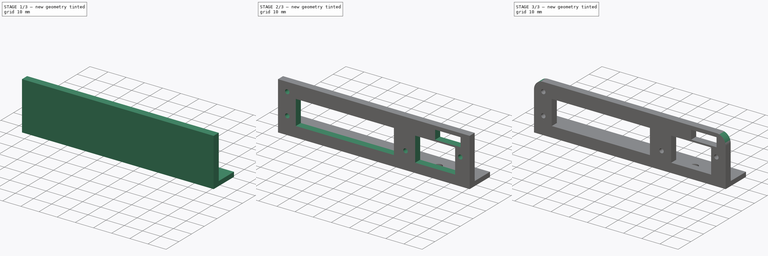
[diagram: build sequence overview — one tinted view per stage of 3, left to right]
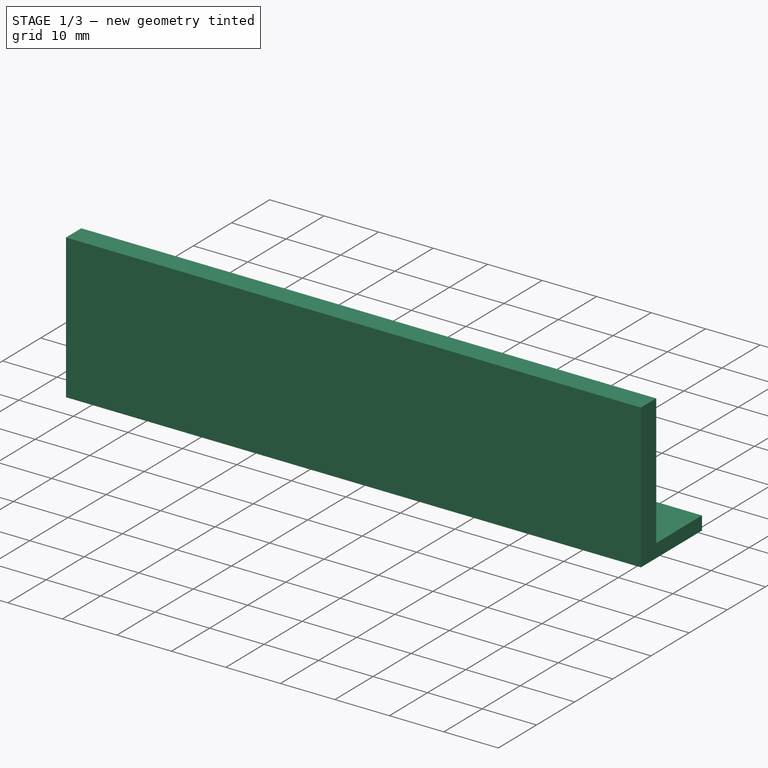
[diagram: stage 1 of 3 — iso view after this stage's code; geometry added in this stage tinted green]
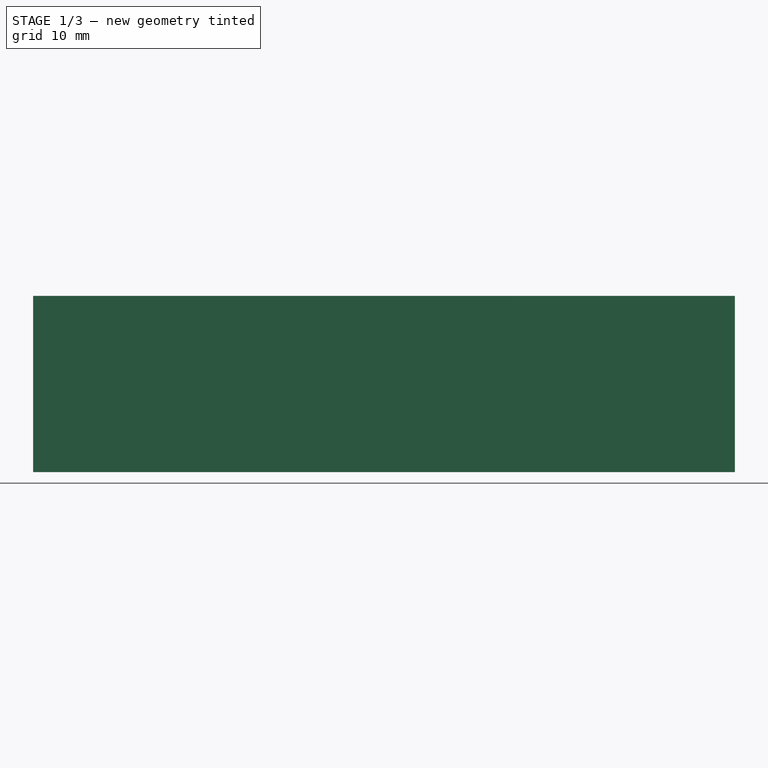
[diagram: stage 1 of 3 — front view after this stage's code; geometry added in this stage tinted green]
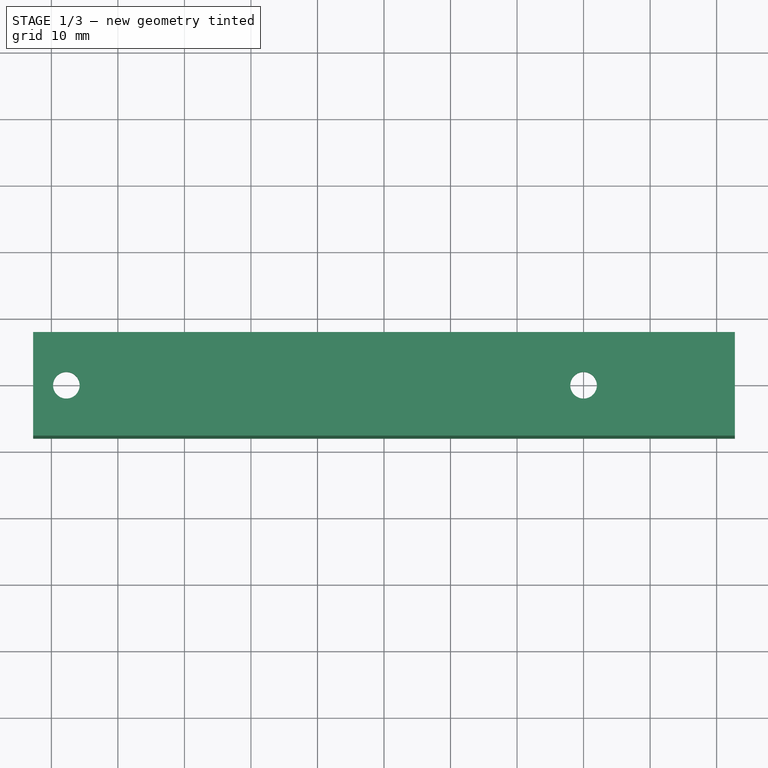
[diagram: stage 1 of 3 — top view after this stage's code; geometry added in this stage tinted green]
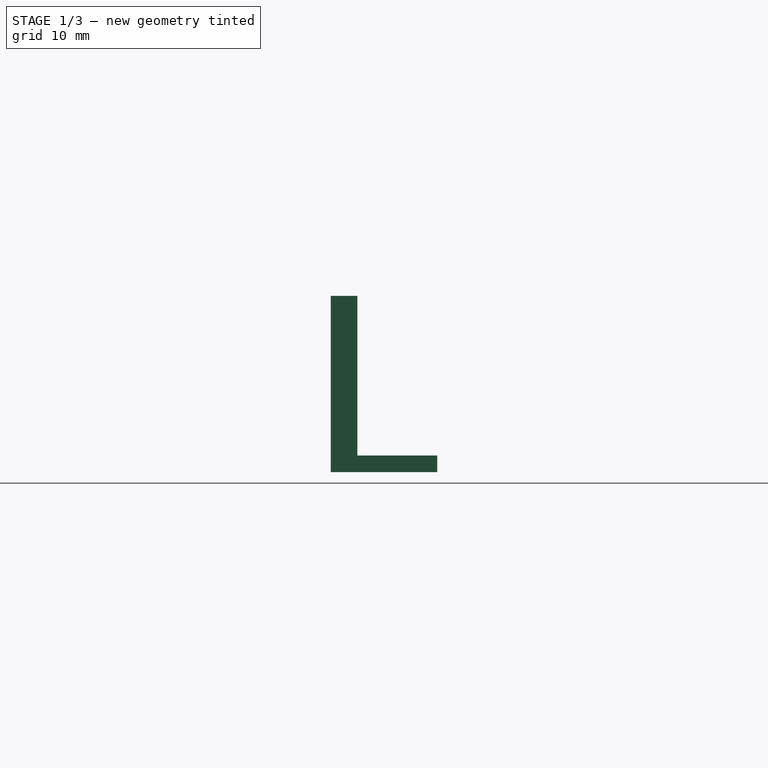
[diagram: stage 1 of 3 — right view after this stage's code; geometry added in this stage tinted green]
FCSTD DOCUMENT  (FreeCAD 0.18.4R)
Label: up_left_magnet_pcb_spport_2
License: All rights reserved
LicenseURL: http://en.wikipedia.org/wiki/All_rights_reserved
objects: Part::Feature×7, Sketcher::SketchObject×5, App::Part×5, PartDesign::Pad×2, PartDesign::Pocket×2, PartDesign::Fillet×2, PartDesign::Body×1, PartDesign::CoordinateSystem×1
note: 24 computed .brp shape members not serialized (recipe doc carries the construction recipe); baked Part::Feature solids carry a one-line shape summary decoded from their .brp

FEATURE [Sketcher::SketchObject] Sketch
  MapMode = 5
  Support = -> [XY_Plane]
  sketch-geometry (10):
    g0: LineSegment StartX=-52.75 StartY=8 StartZ=0 EndX=52.75 EndY=8 EndZ=0
    g1: LineSegment StartX=52.75 StartY=-8 StartZ=0 EndX=-52.75 EndY=-8 EndZ=0
    g2: LineSegment StartX=-52.75 StartY=8 StartZ=0 EndX=-52.75 EndY=4 EndZ=0
    g3: LineSegment StartX=-52.75 StartY=-4 StartZ=0 EndX=-52.75 EndY=-8 EndZ=0
    g4: LineSegment StartX=52.75 StartY=8 StartZ=0 EndX=52.75 EndY=3.73191 EndZ=0
    g5: LineSegment StartX=52.75 StartY=-4.26809 StartZ=0 EndX=52.75 EndY=-8 EndZ=0
    g6: LineSegment StartX=-52.75 StartY=4 StartZ=0 EndX=-52.75 EndY=-4 EndZ=0
    g7: LineSegment StartX=52.75 StartY=-4.26809 StartZ=0 EndX=52.75 EndY=3.73191 EndZ=0
    g8: Circle CenterX=-47.75 CenterY=0 CenterZ=0 NormalX=0 NormalY=0 NormalZ=1 AngleXU=0 Radius=2
    g9: Circle CenterX=30 CenterY=0 CenterZ=0 NormalX=0 NormalY=0 NormalZ=1 AngleXU=0 Radius=2
  constraints (22):
    c: Horizontal(g1)
    c: Symmetric(g0,g1,g-1)
    c: Symmetric(g0,g0,g-2)
    c: DistanceY(g1,g0) = 16
    c: DistanceX(g0,g0) = 105.5
    c: Coincident(g0,g2)
    c: Vertical(g2)
    c: Coincident(g3,g1)
    c: Coincident(g0,g4)
    c: Coincident(g5,g1)
    c: Vertical(g2,g3)
    c: Vertical(g4,g5)
    c: Vertical(g4,g0)
    c: Vertical(g1,g5)
    c: Coincident(g6,g2)
    c: Coincident(g6,g3)
    c: Coincident(g7,g5)
    c: Coincident(g7,g4)
    c: PointOnObject(g8,g-1)
    c: Radius(g8) = 2
    c: Radius(g9) = 2
    c: Distance(g8,g6) = 5
FEATURE [PartDesign::Pad] Pad
  Length = 2.5
  Length2 = 100
  Profile = -> Sketch
  Type = 0
FEATURE [Sketcher::SketchObject] Sketch001
  ExternalGeometry = -> [Pad]
  MapMode = 5
  Placement = pos=(0,0,2.5) rot=(0,0,1;0rad)
  Support = -> [Pad]
  sketch-geometry (4):
    g0: LineSegment StartX=-52.75 StartY=-8 StartZ=0 EndX=52.75 EndY=-8 EndZ=0
    g1: LineSegment StartX=52.75 StartY=-8 StartZ=0 EndX=52.75 EndY=-4 EndZ=0
    g2: LineSegment StartX=52.75 StartY=-4 StartZ=0 EndX=-52.75 EndY=-4 EndZ=0
    g3: LineSegment StartX=-52.75 StartY=-4 StartZ=0 EndX=-52.75 EndY=-8 EndZ=0
  constraints (11):
    c: Coincident(g0,g1)
    c: Coincident(g1,g2)
    c: Coincident(g2,g3)
    c: Coincident(g3,g0)
    c: Horizontal(g0)
    c: Horizontal(g2)
    c: Vertical(g1)
    c: Vertical(g3)
    c: Coincident(g0,g-5)
    c: PointOnObject(g1,g-6)
    c: DistanceY(g3,g3) = 4
FEATURE [PartDesign::Pad] Pad001
  BaseFeature = -> Pad
  Length = 24
  Length2 = 100
  Profile = -> Sketch001
  Type = 0
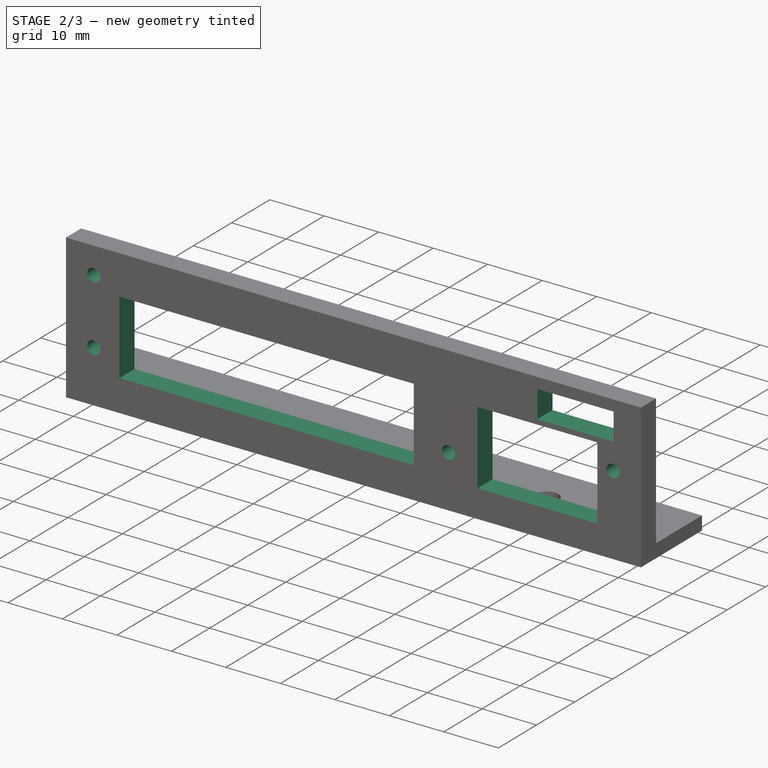
[diagram: stage 2 of 3 — iso view after this stage's code; geometry added in this stage tinted green]
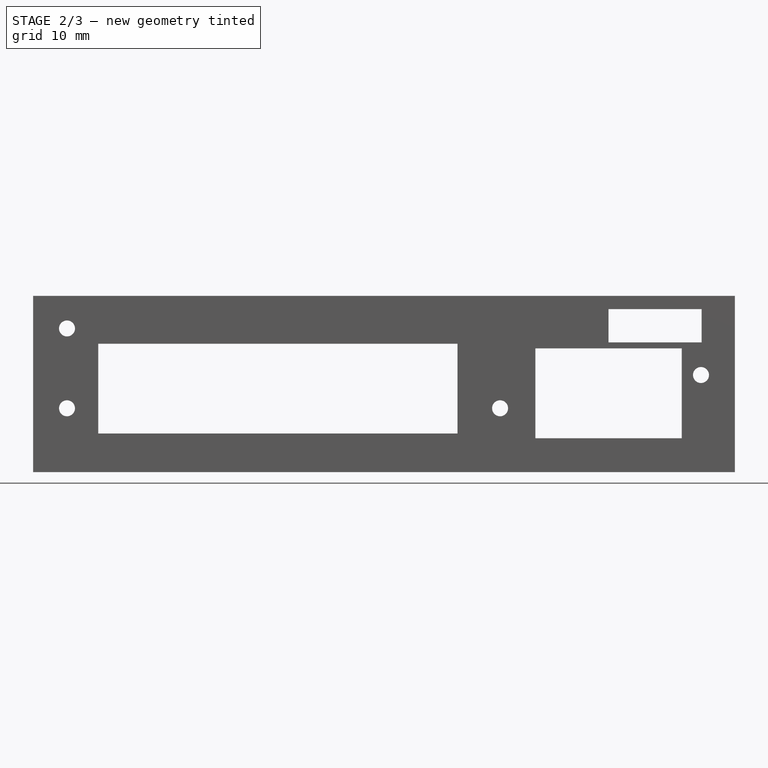
[diagram: stage 2 of 3 — front view after this stage's code; geometry added in this stage tinted green]
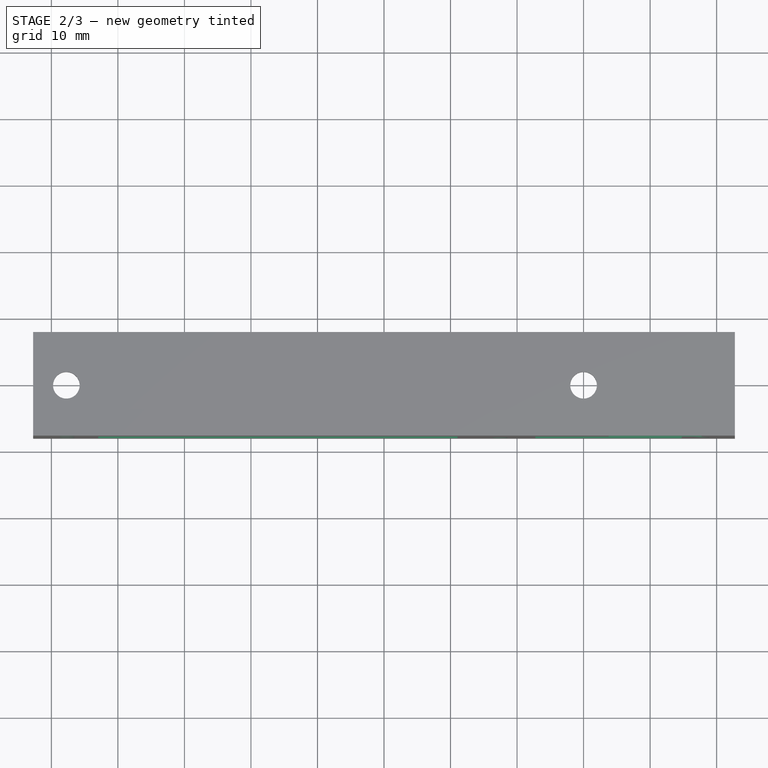
[diagram: stage 2 of 3 — top view after this stage's code; geometry added in this stage tinted green]
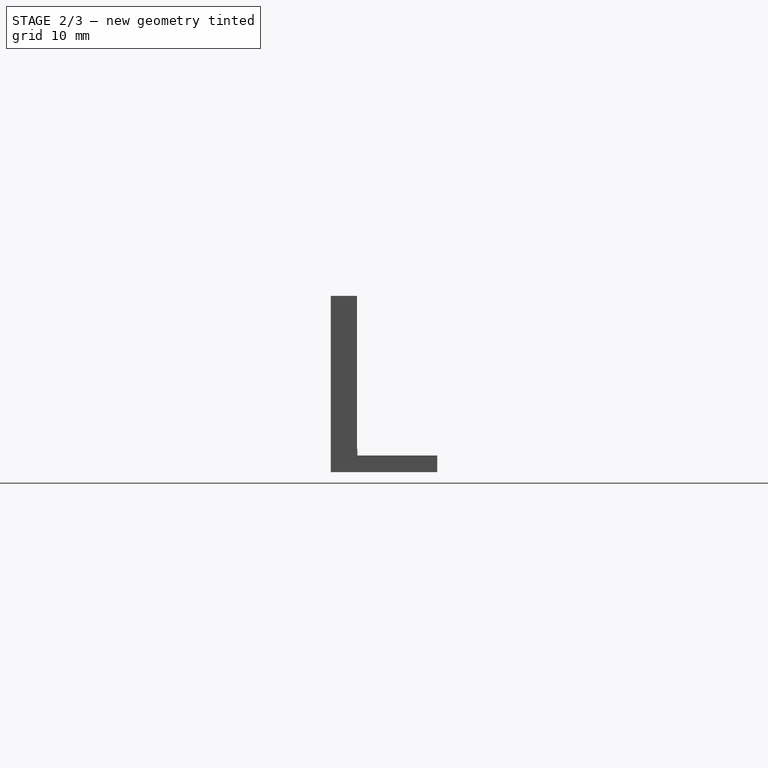
[diagram: stage 2 of 3 — right view after this stage's code; geometry added in this stage tinted green]
FEATURE [Sketcher::SketchObject] Sketch002
  ExternalGeometry = -> [Pad001]
  MapMode = 5
  Placement = pos=(0,-4,0) rot=(0,0.707107,0.707107;3.14159rad)
  Support = -> [Pad001]
  sketch-geometry (4):
    g0: LineSegment StartX=-52.75 StartY=3.5 StartZ=0 EndX=52.75 EndY=3.5 EndZ=0
    g1: LineSegment StartX=52.75 StartY=3.5 StartZ=0 EndX=52.75 EndY=26.5 EndZ=0
    g2: LineSegment StartX=52.75 StartY=26.5 StartZ=0 EndX=-52.75 EndY=26.5 EndZ=0
    g3: LineSegment StartX=-52.75 StartY=26.5 StartZ=0 EndX=-52.75 EndY=3.5 EndZ=0
  constraints (11):
    c: Coincident(g0,g1)
    c: Coincident(g1,g2)
    c: Coincident(g2,g3)
    c: Coincident(g3,g0)
    c: Horizontal(g0)
    c: Horizontal(g2)
    c: Vertical(g1)
    c: Vertical(g3)
    c: PointOnObject(g0,g-3)
    c: Coincident(g1,g-4)
    c: DistanceY(g3,g3) = 23
FEATURE [PartDesign::Pocket] Pocket
  BaseFeature = -> Pad001
  Length = 0.05
  Length2 = 100
  Profile = -> Sketch002
  Type = 0
FEATURE [Sketcher::SketchObject] Sketch003
  ExternalGeometry = -> [Pocket]
  MapMode = 5
  Placement = pos=(0,-4.05,9e-16) rot=(0,0.707107,0.707107;3.14159rad)
  Support = -> [Pocket]
  sketch-geometry (16):
    g0: Circle CenterX=47.65 CenterY=9.6 CenterZ=0 NormalX=0 NormalY=0 NormalZ=1 AngleXU=0 Radius=1.2
    g1: Circle CenterX=47.65 CenterY=21.6 CenterZ=0 NormalX=0 NormalY=0 NormalZ=1 AngleXU=0 Radius=1.2
    g2: Circle CenterX=-17.45 CenterY=9.6 CenterZ=0 NormalX=0 NormalY=0 NormalZ=1 AngleXU=0 Radius=1.2
    g3: Circle CenterX=-47.65 CenterY=14.6 CenterZ=0 NormalX=0 NormalY=0 NormalZ=1 AngleXU=0 Radius=1.2
    g4: LineSegment StartX=42.95 StartY=5.8 StartZ=0 EndX=-11.05 EndY=5.8 EndZ=0
    g5: LineSegment StartX=-11.05 StartY=5.8 StartZ=0 EndX=-11.05 EndY=19.3 EndZ=0
    g6: LineSegment StartX=-11.05 StartY=19.3 StartZ=0 EndX=42.95 EndY=19.3 EndZ=0
    g7: LineSegment StartX=42.95 StartY=19.3 StartZ=0 EndX=42.95 EndY=5.8 EndZ=0
    g8: LineSegment StartX=-22.75 StartY=5.1 StartZ=0 EndX=-44.75 EndY=5.1 EndZ=0
    g9: LineSegment StartX=-44.75 StartY=5.1 StartZ=0 EndX=-44.75 EndY=18.6 EndZ=0
    g10: LineSegment StartX=-44.75 StartY=18.6 StartZ=0 EndX=-22.75 EndY=18.6 EndZ=0
    g11: LineSegment StartX=-22.75 StartY=18.6 StartZ=0 EndX=-22.75 EndY=5.1 EndZ=0
    g12: LineSegment StartX=-33.75 StartY=19.5 StartZ=0 EndX=-47.75 EndY=19.5 EndZ=0
    g13: LineSegment StartX=-47.75 StartY=19.5 StartZ=0 EndX=-47.75 EndY=24.5 EndZ=0
    g14: LineSegment StartX=-47.75 StartY=24.5 StartZ=0 EndX=-33.75 EndY=24.5 EndZ=0
    g15: LineSegment StartX=-33.75 StartY=24.5 StartZ=0 EndX=-33.75 EndY=19.5 EndZ=0
  constraints (48):
    c: Coincident(g4,g5)
    c: Coincident(g5,g6)
    c: Coincident(g6,g7)
    c: Coincident(g7,g4)
    c: Horizontal(g4)
    c: Horizontal(g6)
    c: Vertical(g5)
    c: Vertical(g7)
    c: Coincident(g8,g9)
    c: Coincident(g9,g10)
    c: Coincident(g10,g11)
    c: Coincident(g11,g8)
    c: Horizontal(g8)
    c: Horizontal(g10)
    c: Vertical(g9)
    c: Vertical(g11)
    c: Vertical(g0,g1)
    c: Distance(g0,g1) = 12
    c: Distance(g0,g-3) = 5.1
    c: Distance(g0,g-4) = 6.1
    c: Radius(g0) = 1.2
    c: Radius(g1) = 1.2
    c: Radius(g3) = 1.2
    c: Radius(g2) = 1.2
    c: DistanceX(g4,g4) = 54
    c: DistanceY(g5,g5) = 13.5
    c: Distance(g4,g-4) = 2.3
    c: Distance(g4,g-3) = 9.8
    c: Horizontal(g2,g0)
    c: Distance(g2,g0) = 65.1
    c: DistanceX(g8,g8) = 22
    c: DistanceY(g9,g9) = 13.5
    c: Distance(g9,g-5) = 8
    c: Distance(g3,g-4) = 11.1
    c: Distance(g3,g-5) = 5.1
    c: Distance(g8,g-4) = 1.6
    c: Coincident(g12,g13)
    c: Coincident(g13,g14)
    c: Coincident(g14,g15)
    c: Coincident(g15,g12)
    c: Horizontal(g12)
    c: Horizontal(g14)
    c: Vertical(g13)
    c: Vertical(g15)
    c: DistanceY(g15,g15) = 5
    c: Distance(g12,g-6) = 7
    c: Distance(g12,g-5) = 5
    c: DistanceX(g14,g14) = 14
FEATURE [PartDesign::Pocket] Pocket001
  BaseFeature = -> Pocket
  Length = 5
  Length2 = 100
  Profile = -> Sketch003
  Type = 0
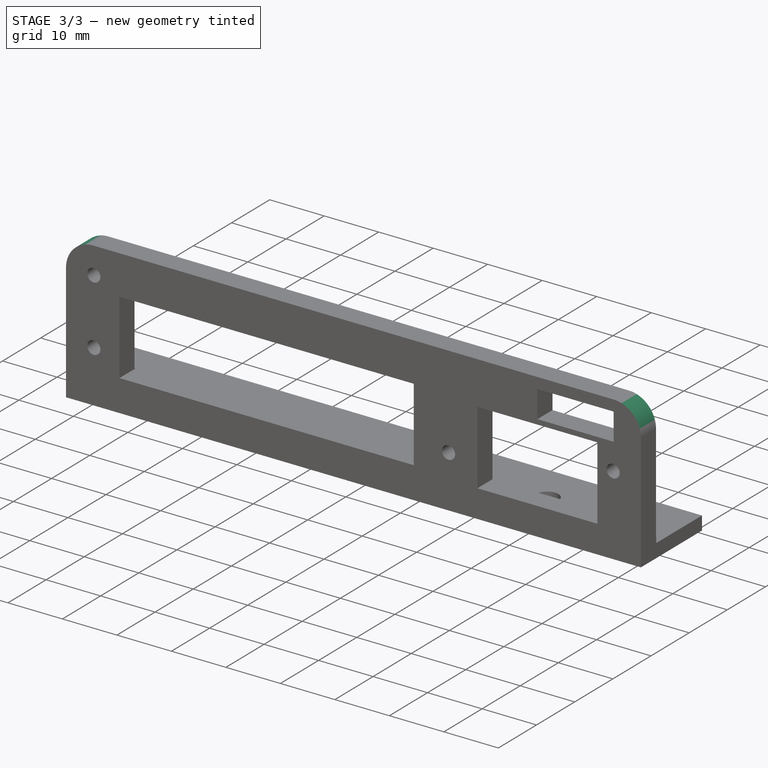
[diagram: stage 3 of 3 — iso view after this stage's code; geometry added in this stage tinted green]
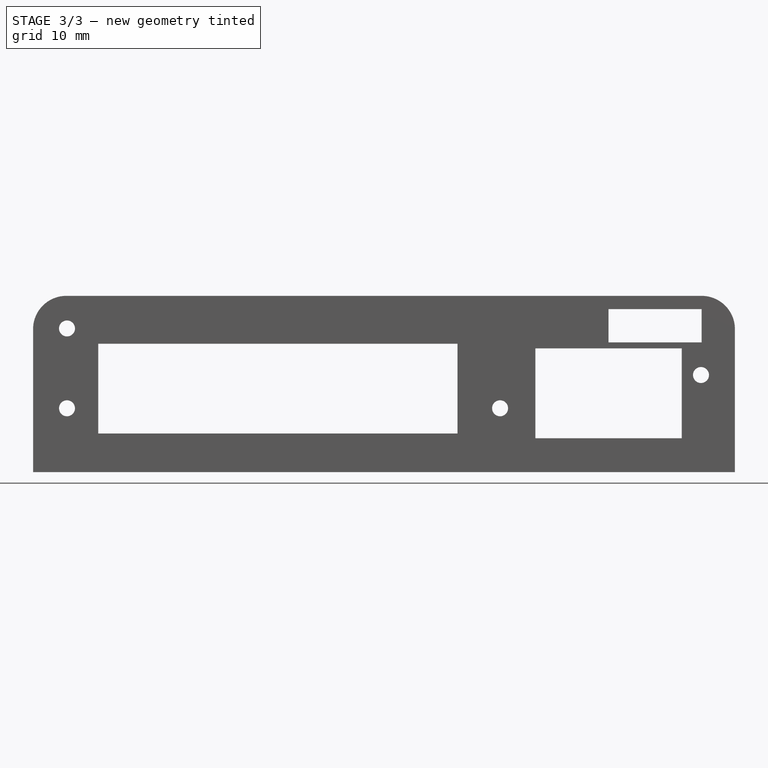
[diagram: stage 3 of 3 — front view after this stage's code; geometry added in this stage tinted green]
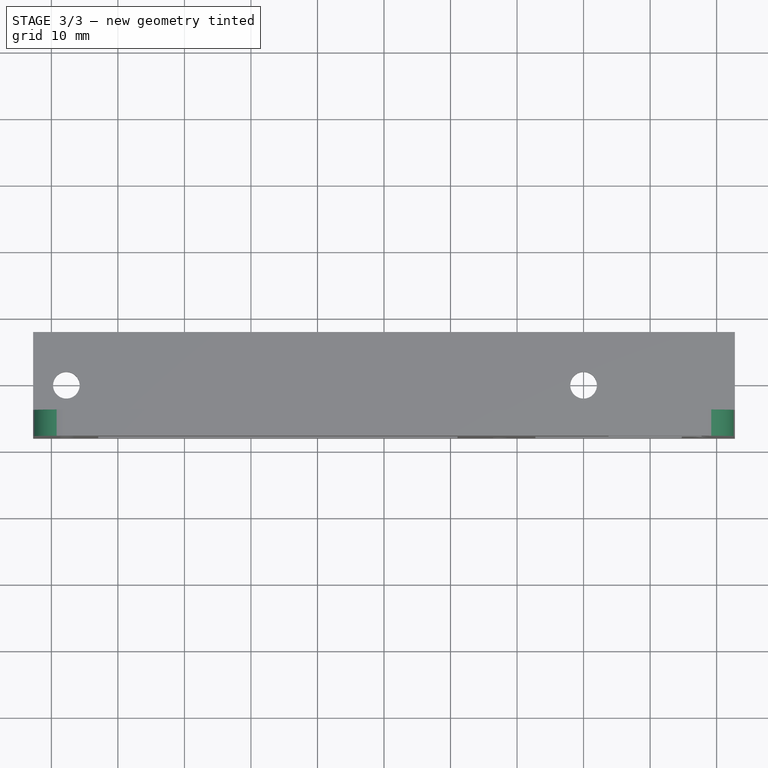
[diagram: stage 3 of 3 — top view after this stage's code; geometry added in this stage tinted green]
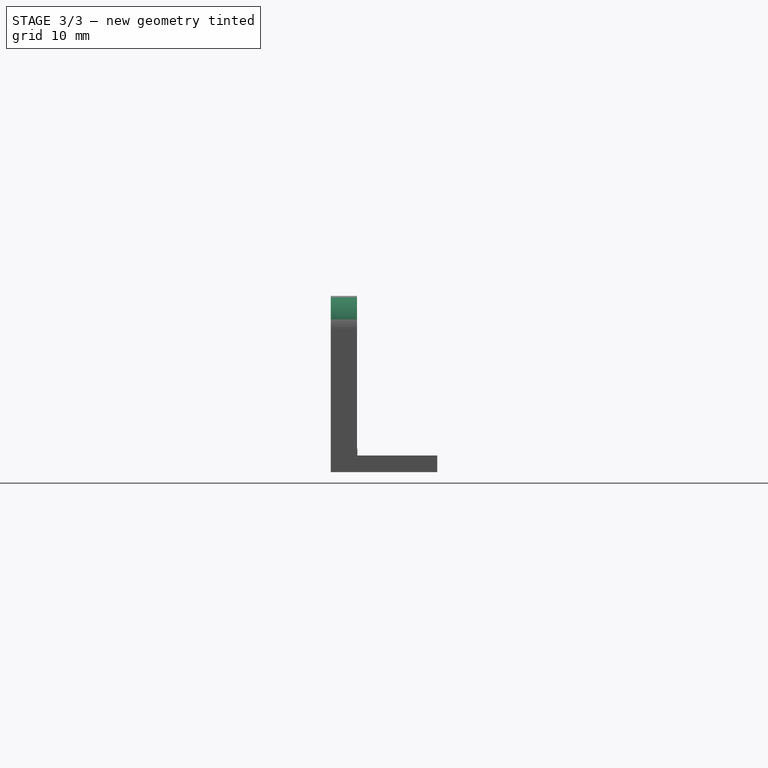
[diagram: stage 3 of 3 — right view after this stage's code; geometry added in this stage tinted green]
FEATURE [PartDesign::Fillet] Fillet
  Base = -> Pocket001 [Edge42]
  BaseFeature = -> Pocket001
  Radius = 5
FEATURE [PartDesign::Fillet] Fillet001
  Base = -> Fillet [Edge59]
  BaseFeature = -> Fillet
  Radius = 5
FEATURE [PartDesign::Body] Body
  Group = -> [Sketch,Pad,Sketch001,Pad001,Sketch002,Pocket,Sketch003,Pocket001,Fillet,Fillet001]
  Origin = -> Origin
  Tip = -> Fillet001
FEATURE [Part::Feature] Shape003  label="J3_PinHeader_2x07_P254mm_Vertical_6278083A"
  Placement = pos=(198.963,-65.2983,-1.6) rot=(0.707107,-0.707107,0;3.14159rad)
  shape: bbox 17.78 x 5.08 x 11.54 mm, 298 faces (baked)
FEATURE [Part::Feature] Shape005  label="J4_JST_B4B_EH_A_62780C6B"
  Placement = pos=(210,-79.9541,0) rot=(0,0,1;0rad)
  shape: bbox 12.5 x 3.8 x 9.2 mm, 126 faces (baked)
FEATURE [Part::Feature] Shape004  label="R3_R_0805_2012Metric_6278086D"
  Placement = pos=(174.541,-80.4266,0) rot=(0,0,1;0rad)
  shape: bbox 2 x 1.2 x 0.45 mm, 26 faces (baked)
FEATURE [Part::Feature] Shape  label="D3_LED_1206_3216Metric_627807AB"
  Placement = pos=(181.336,-80.3402,0) rot=(0,0,1;0rad)
  shape: bbox 3.2 x 1.6 x 1.1 mm, 50 faces (baked)
FEATURE [Part::Feature] Pcb_64d6
  shape: bbox 105 x 23 x 1.6 mm, 67 faces (baked)
FEATURE [Part::Feature] Shape002  label="J2_PinHeader_2x07_P254mm_Vertical_62780816"
  Placement = pos=(198.892,-72.2478,-1.6) rot=(0.707107,-0.707107,0;3.14159rad)
  shape: bbox 17.78 x 5.08 x 11.54 mm, 298 faces (baked)
FEATURE [App::Part] Bot_64d6
  Group = -> [Shape002,Shape003]
  Origin = -> Origin004
FEATURE [Sketcher::SketchObject] PCB_Sketch_64d6
  sketch-geometry (6):
    g0: LineSegment StartX=120 StartY=-80.0057 StartZ=0 EndX=120 EndY=-62 EndZ=0
    g1: LineSegment StartX=124.871 StartY=-84.9935 StartZ=0 EndX=220 EndY=-84.9986 EndZ=0
    g2: LineSegment StartX=225 StartY=-62 StartZ=0 EndX=224.962 EndY=-80.1218 EndZ=0
    g3: LineSegment StartX=120 StartY=-62 StartZ=0 EndX=225 EndY=-62 EndZ=0
    g4: ArcOfCircle CenterX=220 CenterY=-80.0354 CenterZ=0 NormalX=0 NormalY=0 NormalZ=1 AngleXU=0 Radius=4.96316 StartAngle=4.71239 EndAngle=6.26579
    g5: ArcOfCircle CenterX=124.963 CenterY=-80.0311 CenterZ=0 NormalX=0 NormalY=0 NormalZ=1 AngleXU=0 Radius=4.96322 StartAngle=3.13647 EndAngle=4.69397
  constraints (6):
    c: Coincident(g0,g5)
    c: Coincident(g0,g3)
    c: Coincident(g1,g5)
    c: Coincident(g1,g4)
    c: Coincident(g2,g4)
    c: Coincident(g2,g3)
FEATURE [PartDesign::CoordinateSystem] Local_CS_64d6
  AttacherType = Attacher::AttachEngine3D
FEATURE [App::Part] Board_Geoms_64d6
  Group = -> [Local_CS_64d6,Pcb_64d6,PCB_Sketch_64d6]
  Origin = -> Origin001
FEATURE [Part::Feature] Shape001  label="J1_DSUB-25_Female_Vertical_P2.77x2.84mm_MountingHoles_627807F2"
  Placement = pos=(173.452,-69.0982,0) rot=(0,0,1;0rad)
  shape: bbox 53.26 x 12.66 x 14.7 mm, 231 faces (baked)
FEATURE [App::Part] Top_64d6
  Group = -> [Shape,Shape001,Shape004,Shape005]
  Origin = -> Origin003
FEATURE [App::Part] Step_Models_64d6
  Group = -> [Top_64d6,Bot_64d6]
  Origin = -> Origin002
FEATURE [App::Part] Board_64d6  label="interface_up_left_side_arm"
  Group = -> [Board_Geoms_64d6,Step_Models_64d6]
  Origin = -> Origin005
  Placement = pos=(-172,-3,-58) rot=(-1,0,0;1.5708rad)
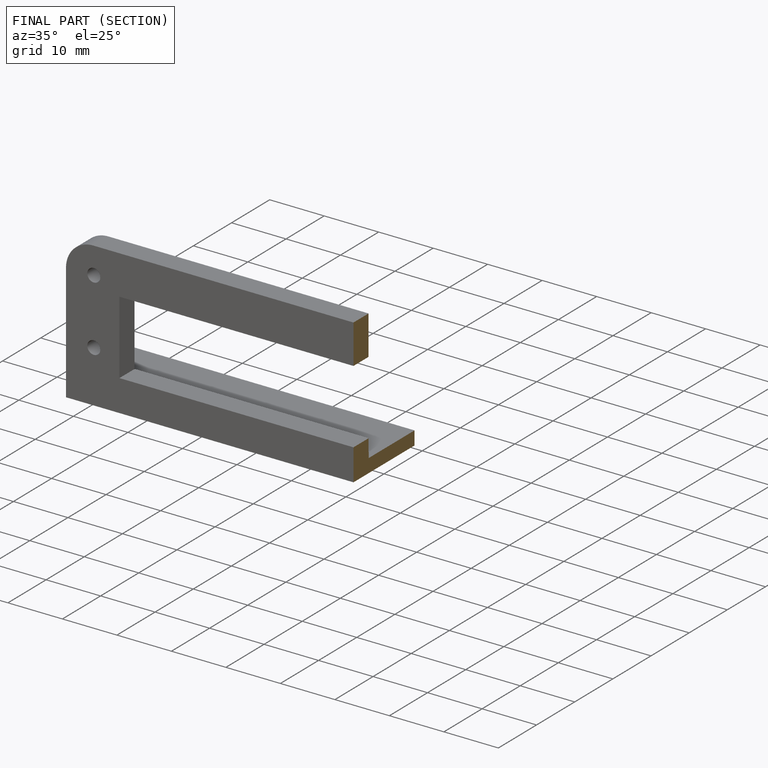
[diagram: finished part — half-section view (interior)]
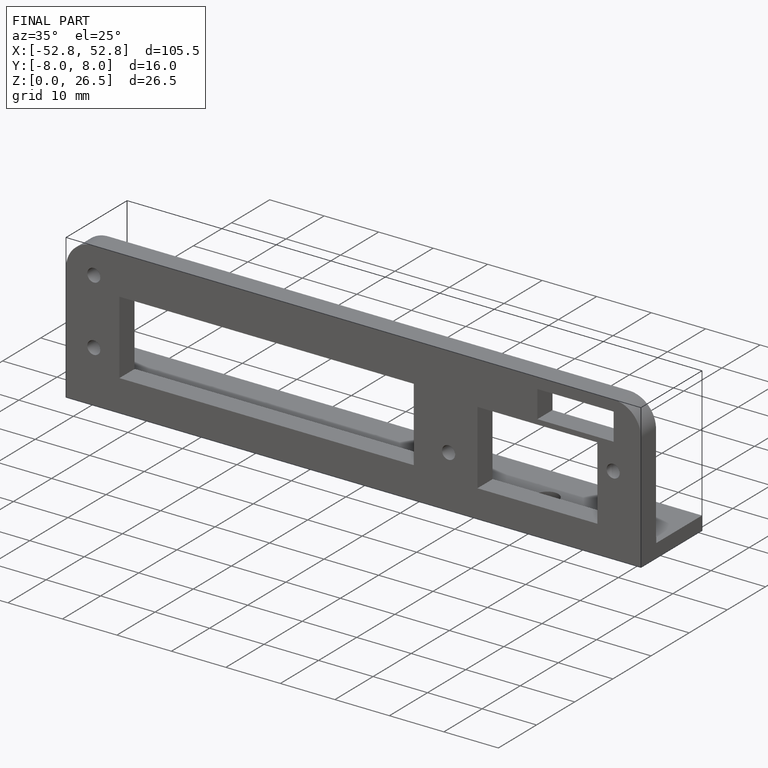
[diagram: finished part — iso view with bounding-box wireframe]
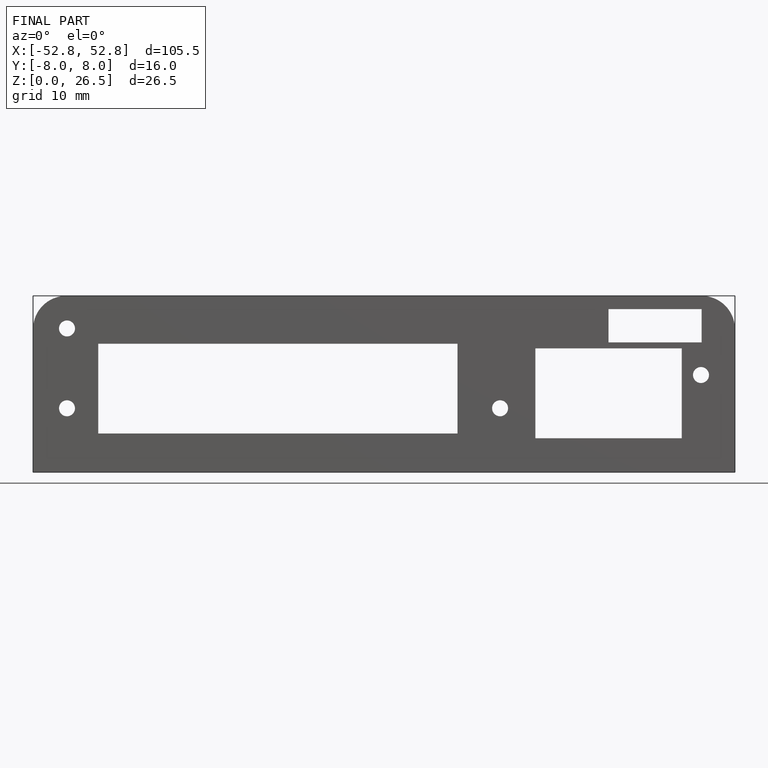
[diagram: finished part — front view with bounding-box wireframe]
